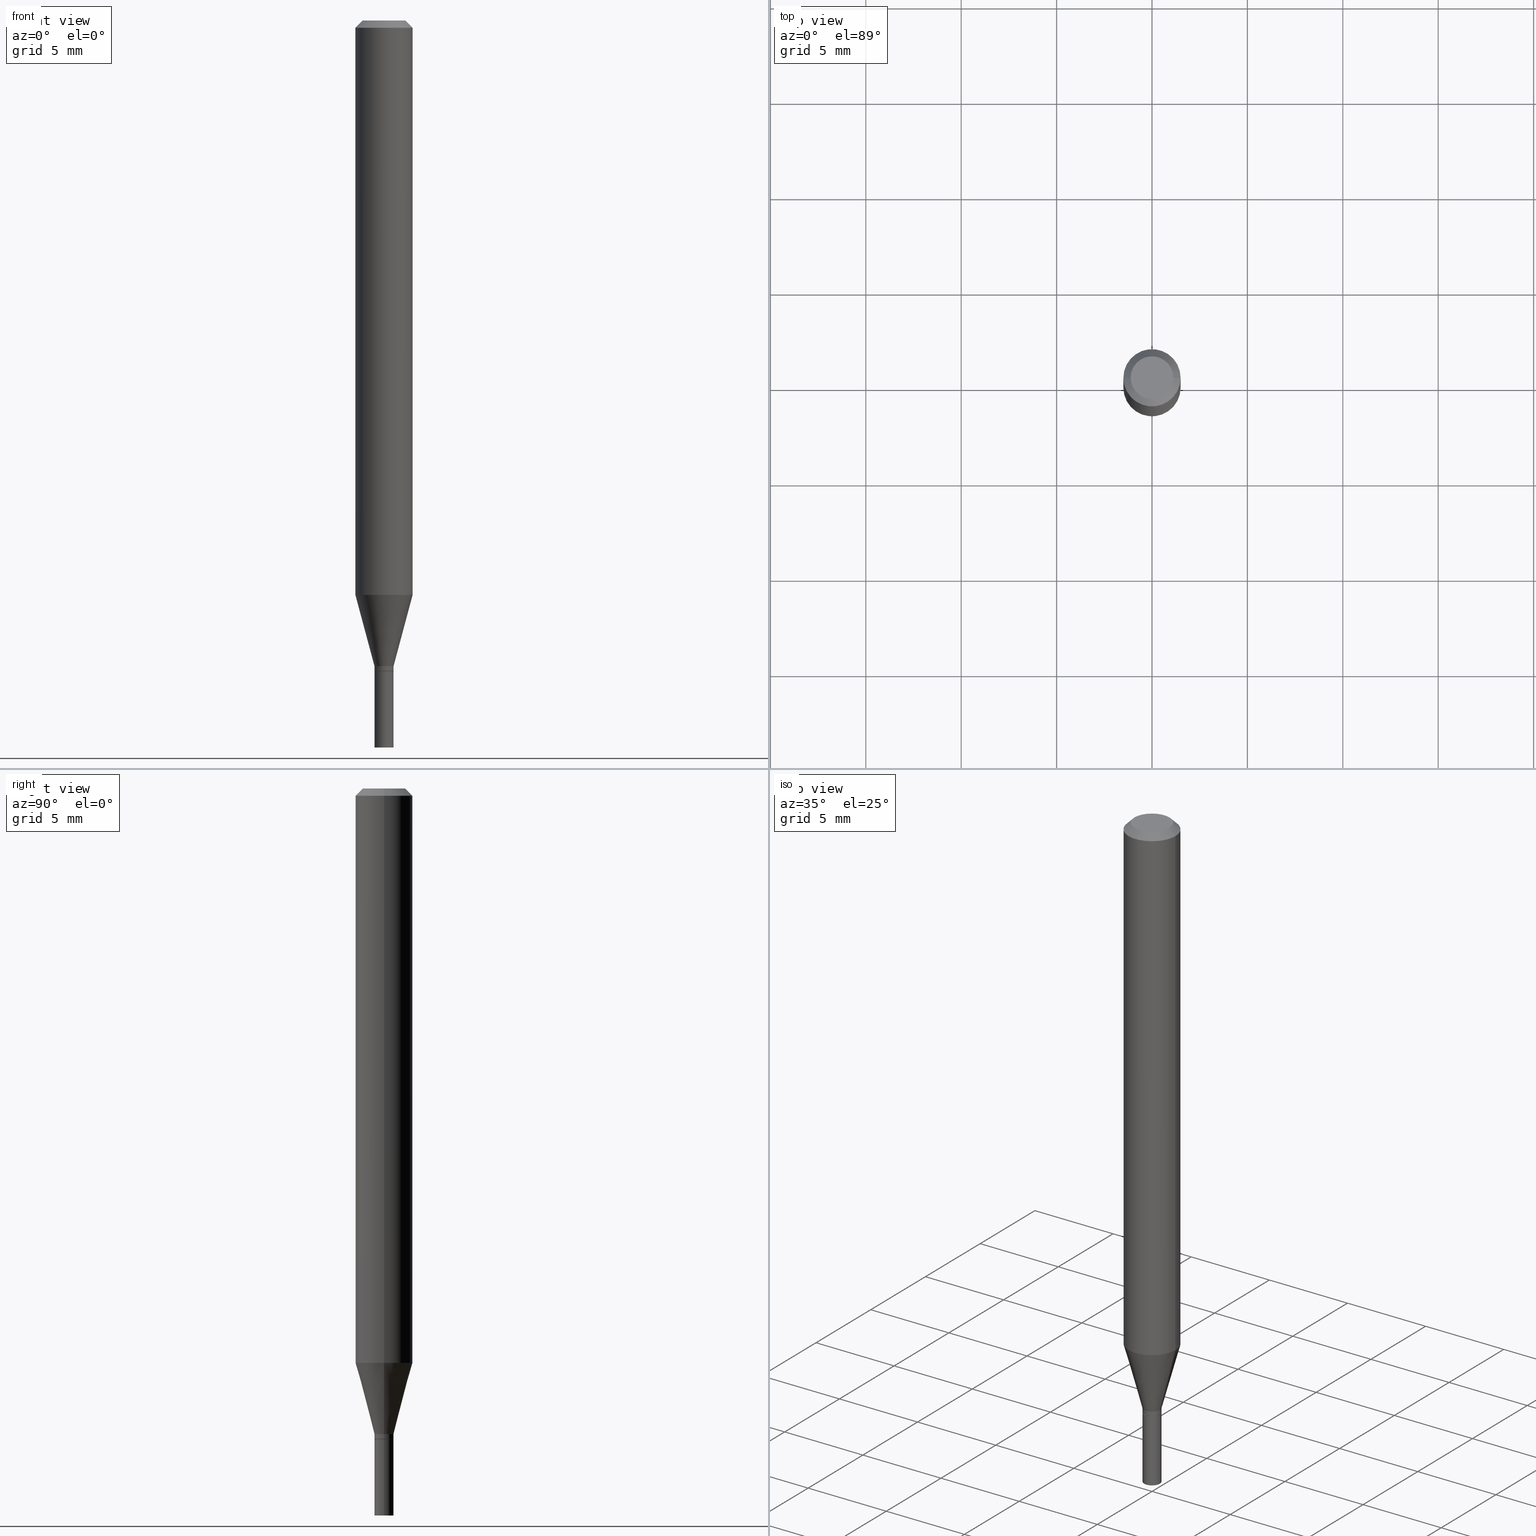
[diagram: canonical four-view strip — front | top / right | iso, engineering-drawing reading convention]
A machine part, canonical four-view strip (front | top / right | iso — engineering-drawing reading convention). The complete STEP part file that produces these views, byte-faithful:
ISO-10303-21;
HEADER;
FILE_DESCRIPTION (( 'STEP AP203' ),
    '1' );
FILE_NAME ('48671.STEP',
    '2024-03-12T19:41:00',
    ( '' ),
    ( '' ),
    'SwSTEP 2.0',
    'SolidWorks 2023',
    '' );
FILE_SCHEMA (( 'CONFIG_CONTROL_DESIGN' ));
ENDSEC;

DATA;
#1 = CARTESIAN_POINT ( 'NONE',  ( 0.05905000000000001914, -4.647161662000214077E-16, -0.01499999999999999944 ) ) ;
#2 = CARTESIAN_POINT ( 'NONE',  ( -0.05905000000000001914, 4.195754854663392958E-16, -2.904631170795522943E-30 ) ) ;
#3 = VERTEX_POINT ( 'NONE', #242 ) ;
#4 = CONICAL_SURFACE ( 'NONE', #400, 0.01919999999999999485, 0.7853981633974739252 ) ;
#5 = EDGE_CURVE ( 'NONE', #460, #3, #174, .T. ) ;
#6 = VECTOR ( 'NONE', #226, 39.37007874015748854 ) ;
#7 = FACE_OUTER_BOUND ( 'NONE', #415, .T. ) ;
#8 = DIRECTION ( 'NONE',  ( 1.000000000000000000, -6.982962677686266711E-15, 4.876176775795935793E-29 ) ) ;
#9 = CARTESIAN_POINT ( 'NONE',  ( -0.05905000000000001914, -3.718331978600737710E-15, -1.185143800722164409 ) ) ;
#10 = CIRCLE ( 'NONE', #138, 0.01969999999999999876 ) ;
#11 = DIRECTION ( 'NONE',  ( -1.000000000000000000, 6.982962677686266711E-15, 0.000000000000000000 ) ) ;
#12 = DIRECTION ( 'NONE',  ( -2.445468806185136597E-29, 3.491481338843145583E-15, 1.000000000000000000 ) ) ;
#13 = ORIENTED_EDGE ( 'NONE', *, *, #427, .F. ) ;
#14 = APPROVAL ( #388, 'UNSPECIFIED' ) ;
#15 = DIRECTION ( 'NONE',  ( -2.445468806185136597E-29, 3.491481338843145583E-15, 1.000000000000000000 ) ) ;
#16 = PRODUCT ( '48671', '48671', '', ( #462 ) ) ;
#17 = ORIENTED_EDGE ( 'NONE', *, *, #350, .F. ) ;
#18 = AXIS2_PLACEMENT_3D ( 'NONE', #143, #426, #29 ) ;
#19 = DIRECTION ( 'NONE',  ( -2.445468806185136597E-29, 3.491481338843145583E-15, 1.000000000000000000 ) ) ;
#20 = ORIENTED_EDGE ( 'NONE', *, *, #323, .T. ) ;
#21 = VERTEX_POINT ( 'NONE', #97 ) ;
#22 = DIRECTION ( 'NONE',  ( -2.445468806185136597E-29, 3.491481338843145583E-15, 1.000000000000000000 ) ) ;
#23 = EDGE_CURVE ( 'NONE', #50, #375, #205, .T. ) ;
#24 = ORIENTED_EDGE ( 'NONE', *, *, #275, .T. ) ;
#25 = CARTESIAN_POINT ( 'NONE',  ( 0.000000000000000000, 0.000000000000000000, 0.000000000000000000 ) ) ;
#26 = CARTESIAN_POINT ( 'NONE',  ( 0.000000000000000000, 0.000000000000000000, 0.000000000000000000 ) ) ;
#27 = CARTESIAN_POINT ( 'NONE',  ( -0.01969999999999991896, -4.545591037782763230E-15, -1.342000000000000304 ) ) ;
#28 = ADVANCED_FACE ( 'NONE', ( #322 ), #281, .T. ) ;
#29 = DIRECTION ( 'NONE',  ( 1.000000000000000000, -6.982962677686266711E-15, 0.000000000000000000 ) ) ;
#30 = PERSON_AND_ORGANIZATION_ROLE ( 'design_supplier' ) ;
#31 = FACE_OUTER_BOUND ( 'NONE', #269, .T. ) ;
#32 = AXIS2_PLACEMENT_3D ( 'NONE', #260, #12, #305 ) ;
#33 = PRODUCT_DEFINITION_FORMATION_WITH_SPECIFIED_SOURCE ( 'ANY', '', #16, .NOT_KNOWN. ) ;
#34 = EDGE_LOOP ( 'NONE', ( #128, #156 ) ) ;
#35 = ORIENTED_EDGE ( 'NONE', *, *, #403, .F. ) ;
#36 = DIRECTION ( 'NONE',  ( 1.000000000000000000, -6.982962677686278543E-15, 0.000000000000000000 ) ) ;
#37 = EDGE_CURVE ( 'NONE', #234, #50, #214, .T. ) ;
#38 = CARTESIAN_POINT ( 'NONE',  ( -0.04404999999999999888, 3.337856159934041534E-16, 3.533548453838689148E-16 ) ) ;
#39 = CIRCLE ( 'NONE', #58, 0.04404999999999999888 ) ;
#40 = DIRECTION ( 'NONE',  ( -2.445468806185136597E-29, 3.491481338843145583E-15, 1.000000000000000000 ) ) ;
#41 = DIRECTION ( 'NONE',  ( -2.445468806185136597E-29, 3.491481338843145583E-15, 1.000000000000000000 ) ) ;
#42 = FACE_OUTER_BOUND ( 'NONE', #442, .T. ) ;
#43 = AXIS2_PLACEMENT_3D ( 'NONE', #25, #312, #8 ) ;
#44 = DIRECTION ( 'NONE',  ( -2.438088387897960049E-29, 3.491481338843145188E-15, 1.000000000000000000 ) ) ;
#45 = LINE ( 'NONE', #119, #405 ) ;
#46 = ORIENTED_EDGE ( 'NONE', *, *, #256, .F. ) ;
#47 = LINE ( 'NONE', #345, #272 ) ;
#48 = ORIENTED_EDGE ( 'NONE', *, *, #196, .F. ) ;
#49 = CIRCLE ( 'NONE', #444, 0.01919999999999999485 ) ;
#50 = VERTEX_POINT ( 'NONE', #1 ) ;
#51 = EDGE_CURVE ( 'NONE', #21, #460, #274, .T. ) ;
#52 = DIRECTION ( 'NONE',  ( 1.000000000000000000, -6.982962677686266711E-15, 0.000000000000000000 ) ) ;
#53 = ORIENTED_EDGE ( 'NONE', *, *, #90, .F. ) ;
#54 = PERSON_AND_ORGANIZATION ( #410, #190 ) ;
#55 = DIRECTION ( 'NONE',  ( 1.000000000000000000, -6.982962677686265922E-15, 4.876176775795935793E-29 ) ) ;
#56 = PERSON_AND_ORGANIZATION ( #410, #190 ) ;
#57 = VECTOR ( 'NONE', #399, 39.37007874015748143 ) ;
#58 = AXIS2_PLACEMENT_3D ( 'NONE', #333, #22, #82 ) ;
#59 = DIRECTION ( 'NONE',  ( 1.000000000000000000, -6.982962677686258033E-15, 0.000000000000000000 ) ) ;
#60 = EDGE_CURVE ( 'NONE', #72, #460, #100, .T. ) ;
#61 = PERSON_AND_ORGANIZATION_ROLE ( 'creator' ) ;
#62 = FACE_OUTER_BOUND ( 'NONE', #141, .T. ) ;
#63 = APPROVAL_DATE_TIME ( #103, #147 ) ;
#64 = DIRECTION ( 'NONE',  ( 1.000000000000000000, -6.982962677686266711E-15, 0.000000000000000000 ) ) ;
#65 = DESIGN_CONTEXT ( 'detailed design', #191, 'design' ) ;
#66 = COORDINATED_UNIVERSAL_TIME_OFFSET ( 5, 0, .BEHIND. ) ;
#67 = AXIS2_PLACEMENT_3D ( 'NONE', #80, #438, #149 ) ;
#68 = FACE_OUTER_BOUND ( 'NONE', #368, .T. ) ;
#69 = VECTOR ( 'NONE', #246, 39.37007874015748143 ) ;
#70 = CC_DESIGN_PERSON_AND_ORGANIZATION_ASSIGNMENT ( #241, #30, ( #33 ) ) ;
#71 = ADVANCED_FACE ( 'NONE', ( #62 ), #4, .T. ) ;
#72 = VERTEX_POINT ( 'NONE', #27 ) ;
#73 = LINE ( 'NONE', #329, #300 ) ;
#74 = CC_DESIGN_PERSON_AND_ORGANIZATION_ASSIGNMENT ( #282, #215, ( #146 ) ) ;
#75 = DIRECTION ( 'NONE',  ( -2.445468806185136597E-29, 3.491481338843145583E-15, 1.000000000000000000 ) ) ;
#76 = DIRECTION ( 'NONE',  ( 2.438088387897960049E-29, -3.491481338843145188E-15, -1.000000000000000000 ) ) ;
#77 = ADVANCED_FACE ( 'NONE', ( #31 ), #217, .T. ) ;
#78 = CIRCLE ( 'NONE', #152, 0.01919999999999999485 ) ;
#79 = AXIS2_PLACEMENT_3D ( 'NONE', #299, #264, #382 ) ;
#80 = CARTESIAN_POINT ( 'NONE',  ( 1.375643647504522233E-16, 0.01969999999999531154, -1.342500000000000249 ) ) ;
#81 = DIRECTION ( 'NONE',  ( -2.445468806185136597E-29, 3.491481338843145583E-15, 1.000000000000000000 ) ) ;
#82 = DIRECTION ( 'NONE',  ( 1.000000000000000000, -6.982962677686265922E-15, 4.819687581474398999E-29 ) ) ;
#83 = ADVANCED_FACE ( 'NONE', ( #68 ), #363, .F. ) ;
#84 = DIRECTION ( 'NONE',  ( -2.445468806185136597E-29, 3.491481338843145583E-15, 1.000000000000000000 ) ) ;
#85 = ORIENTED_EDGE ( 'NONE', *, *, #275, .F. ) ;
#86 = CARTESIAN_POINT ( 'NONE',  ( 2.898232195509746702E-29, -4.137907464067076414E-15, -1.185143800722164409 ) ) ;
#87 = ORIENTED_EDGE ( 'NONE', *, *, #342, .T. ) ;
#88 = CYLINDRICAL_SURFACE ( 'NONE', #206, 0.01969999999999990856 ) ;
#89 = ORIENTED_EDGE ( 'NONE', *, *, #90, .T. ) ;
#90 = EDGE_CURVE ( 'NONE', #310, #72, #245, .T. ) ;
#91 =( CONVERSION_BASED_UNIT ( 'INCH', #413 ) LENGTH_UNIT ( ) NAMED_UNIT ( #302 ) );
#92 = ORIENTED_EDGE ( 'NONE', *, *, #271, .F. ) ;
#93 = SHAPE_DEFINITION_REPRESENTATION ( #298, #212 ) ;
#94 = ORIENTED_EDGE ( 'NONE', *, *, #366, .T. ) ;
#95 = PRODUCT_DEFINITION ( 'UNKNOWN', '', #33, #65 ) ;
#96 = APPROVAL_ROLE ( '' ) ;
#97 = CARTESIAN_POINT ( 'NONE',  ( 0.01919999999999999485, -4.821386580808499461E-15, -1.342500000000000249 ) ) ;
#98 = EDGE_LOOP ( 'NONE', ( #283, #381, #409, #346 ) ) ;
#99 = CALENDAR_DATE ( 2024, 12, 3 ) ;
#100 = CIRCLE ( 'NONE', #287, 0.01969999999999991896 ) ;
#101 = APPROVAL_PERSON_ORGANIZATION ( #465, #357, #428 ) ;
#102 = DIRECTION ( 'NONE',  ( -2.438088387897960049E-29, 3.491481338843145188E-15, 1.000000000000000000 ) ) ;
#103 = DATE_AND_TIME ( #417, #169 ) ;
#104 = CARTESIAN_POINT ( 'NONE',  ( 0.000000000000000000, 0.000000000000000000, 0.000000000000000000 ) ) ;
#105 = CALENDAR_DATE ( 2024, 12, 3 ) ;
#106 = DIRECTION ( 'NONE',  ( 1.000000000000000000, -6.982962677686266711E-15, 0.000000000000000000 ) ) ;
#107 = EDGE_CURVE ( 'NONE', #307, #3, #189, .T. ) ;
#108 = AXIS2_PLACEMENT_3D ( 'NONE', #354, #385, #106 ) ;
#109 = AXIS2_PLACEMENT_3D ( 'NONE', #447, #19, #452 ) ;
#110 = DIRECTION ( 'NONE',  ( -2.445468806185136877E-29, 3.491481338843145188E-15, 1.000000000000000000 ) ) ;
#111 = FACE_OUTER_BOUND ( 'NONE', #418, .T. ) ;
#112 = CC_DESIGN_PERSON_AND_ORGANIZATION_ASSIGNMENT ( #54, #213, ( #33 ) ) ;
#113 = CARTESIAN_POINT ( 'NONE',  ( 0.000000000000000000, 0.000000000000000000, 0.000000000000000000 ) ) ;
#114 = CARTESIAN_POINT ( 'NONE',  ( -0.01919999999999999485, -4.548240264956872853E-15, -1.342500000000000249 ) ) ;
#115 = AXIS2_PLACEMENT_3D ( 'NONE', #176, #391, #64 ) ;
#116 = CARTESIAN_POINT ( 'NONE',  ( 0.05905000000000001914, -4.550251410184451334E-15, -1.185143800722164409 ) ) ;
#117 = CARTESIAN_POINT ( 'NONE',  ( 3.668203209277705088E-31, -5.237222008264718399E-17, -0.01499999999999999944 ) ) ;
#118 = EDGE_CURVE ( 'NONE', #3, #307, #270, .T. ) ;
#119 = CARTESIAN_POINT ( 'NONE',  ( 0.01969999999999989468, -4.788217508089488526E-15, -1.331999999999999851 ) ) ;
#120 = EDGE_LOOP ( 'NONE', ( #338, #420, #159, #383 ) ) ;
#121 = AXIS2_PLACEMENT_3D ( 'NONE', #104, #317, #182 ) ;
#122 = AXIS2_PLACEMENT_3D ( 'NONE', #163, #84, #237 ) ;
#123 = CARTESIAN_POINT ( 'NONE',  ( 3.257364449838602072E-29, -4.650653143339069312E-15, -1.331999999999999851 ) ) ;
#124 = ORIENTED_EDGE ( 'NONE', *, *, #187, .F. ) ;
#125 = PLANE ( 'NONE',  #331 ) ;
#126 = MANIFOLD_SOLID_BREP ( 'Body-Move/Copy2[1]', #348 ) ;
#127 = VERTEX_POINT ( 'NONE', #430 ) ;
#128 = ORIENTED_EDGE ( 'NONE', *, *, #403, .T. ) ;
#129 = CLOSED_SHELL ( 'NONE', ( #132, #372, #251, #28, #361, #335, #77, #173, #239, #83, #71, #313 ) ) ;
#130 = COORDINATED_UNIVERSAL_TIME_OFFSET ( 5, 0, .BEHIND. ) ;
#131 = VERTEX_POINT ( 'NONE', #204 ) ;
#132 = ADVANCED_FACE ( 'NONE', ( #349 ), #171, .T. ) ;
#133 =( NAMED_UNIT ( * ) PLANE_ANGLE_UNIT ( ) SI_UNIT ( $, .RADIAN. ) );
#134 = VERTEX_POINT ( 'NONE', #218 ) ;
#135 = CARTESIAN_POINT ( 'NONE',  ( 0.01919999999999999485, -4.821386580808499461E-15, -1.342500000000000249 ) ) ;
#136 = EDGE_LOOP ( 'NONE', ( #240, #89, #238, #412 ) ) ;
#137 = PERSON_AND_ORGANIZATION ( #410, #190 ) ;
#138 = AXIS2_PLACEMENT_3D ( 'NONE', #185, #41, #154 ) ;
#139 = CARTESIAN_POINT ( 'NONE',  ( 0.01969999999999990856, -1.375643647504188200E-16, 9.606068248317949427E-31 ) ) ;
#140 = APPROVAL_STATUS ( 'not_yet_approved' ) ;
#141 = EDGE_LOOP ( 'NONE', ( #53, #24, #297, #448 ) ) ;
#142 = ADVANCED_FACE ( 'NONE', ( #7 ), #252, .F. ) ;
#143 = CARTESIAN_POINT ( 'NONE',  ( 3.257364449838602072E-29, -4.650653143339069312E-15, -1.331999999999999851 ) ) ;
#144 = AXIS2_PLACEMENT_3D ( 'NONE', #231, #202, #406 ) ;
#145 = CARTESIAN_POINT ( 'NONE',  ( 3.283041872303546419E-29, -4.687313697396923253E-15, -1.342500000000000249 ) ) ;
#146 = SECURITY_CLASSIFICATION ( '', '', #178 ) ;
#147 = APPROVAL ( #425, 'UNSPECIFIED' ) ;
#148 = DIRECTION ( 'NONE',  ( 2.445468806185136597E-29, -3.491481338843145583E-15, -1.000000000000000000 ) ) ;
#149 = DIRECTION ( 'NONE',  ( -1.000000000000000000, 6.982962677686265922E-15, -4.876176775795935793E-29 ) ) ;
#150 = ORIENTED_EDGE ( 'NONE', *, *, #107, .T. ) ;
#151 = CYLINDRICAL_SURFACE ( 'NONE', #179, 0.01969999999999999876 ) ;
#152 = AXIS2_PLACEMENT_3D ( 'NONE', #145, #370, #367 ) ;
#153 = CC_DESIGN_SECURITY_CLASSIFICATION ( #146, ( #33 ) ) ;
#154 = DIRECTION ( 'NONE',  ( 1.000000000000000000, -6.982962677686278543E-15, 0.000000000000000000 ) ) ;
#155 = DIRECTION ( 'NONE',  ( 1.000000000000000000, -6.982962677686265922E-15, 4.876176775795935793E-29 ) ) ;
#156 = ORIENTED_EDGE ( 'NONE', *, *, #350, .T. ) ;
#157 = VERTEX_POINT ( 'NONE', #440 ) ;
#158 = DIRECTION ( 'NONE',  ( -2.445468806185136597E-29, 3.491481338843145583E-15, 1.000000000000000000 ) ) ;
#159 = ORIENTED_EDGE ( 'NONE', *, *, #23, .F. ) ;
#160 = CIRCLE ( 'NONE', #464, 0.01969999999999999876 ) ;
#161 = AXIS2_PLACEMENT_3D ( 'NONE', #86, #376, #194 ) ;
#162 = EDGE_CURVE ( 'NONE', #460, #72, #318, .T. ) ;
#163 = CARTESIAN_POINT ( 'NONE',  ( 2.898232195509746702E-29, -4.137907464067076414E-15, -1.185143800722164409 ) ) ;
#164 = ORIENTED_EDGE ( 'NONE', *, *, #187, .T. ) ;
#165 = CARTESIAN_POINT ( 'NONE',  ( -0.05905000000000001914, -1.675564356608522648E-15, -0.01499999999999999944 ) ) ;
#166 = ORIENTED_EDGE ( 'NONE', *, *, #291, .T. ) ;
#167 = DIRECTION ( 'NONE',  ( -2.445468806185136877E-29, 3.491481338843145188E-15, 1.000000000000000000 ) ) ;
#168 = ORIENTED_EDGE ( 'NONE', *, *, #461, .T. ) ;
#169 = LOCAL_TIME ( 15, 41, 0.000000000000000000, #66 ) ;
#170 = DATE_AND_TIME ( #105, #387 ) ;
#171 = CYLINDRICAL_SURFACE ( 'NONE', #43, 0.01969999999999990856 ) ;
#172 = ORIENTED_EDGE ( 'NONE', *, *, #392, .T. ) ;
#173 = ADVANCED_FACE ( 'NONE', ( #365 ), #216, .T. ) ;
#174 = LINE ( 'NONE', #139, #451 ) ;
#175 = DATE_TIME_ROLE ( 'creation_date' ) ;
#176 = CARTESIAN_POINT ( 'NONE',  ( 3.257364449838602072E-29, -4.650653143339069312E-15, -1.331999999999999851 ) ) ;
#177 = EDGE_CURVE ( 'NONE', #21, #310, #78, .T. ) ;
#178 = SECURITY_CLASSIFICATION_LEVEL ( 'unclassified' ) ;
#179 = AXIS2_PLACEMENT_3D ( 'NONE', #113, #40, #328 ) ;
#180 = CARTESIAN_POINT ( 'NONE',  ( -0.01919999999999999485, -4.550889492130984054E-15, -1.342500000000000249 ) ) ;
#181 = COORDINATED_UNIVERSAL_TIME_OFFSET ( 5, 0, .BEHIND. ) ;
#182 = DIRECTION ( 'NONE',  ( 1.000000000000000000, -6.982962677686266711E-15, 4.876176775795935793E-29 ) ) ;
#183 = DIRECTION ( 'NONE',  ( 1.000000000000000000, -6.982962677686258033E-15, 0.000000000000000000 ) ) ;
#184 = DIRECTION ( 'NONE',  ( -1.000000000000000000, 6.982962677686265922E-15, -4.876176775795935793E-29 ) ) ;
#185 = CARTESIAN_POINT ( 'NONE',  ( 3.668203209277704895E-29, -5.237222008264718177E-15, -1.500000000000000222 ) ) ;
#186 = DIRECTION ( 'NONE',  ( -1.000000000000000000, 6.982962677686266711E-15, 0.000000000000000000 ) ) ;
#187 = EDGE_CURVE ( 'NONE', #72, #307, #364, .T. ) ;
#188 = DIRECTION ( 'NONE',  ( -2.445468806185136597E-29, 3.491481338843145583E-15, 1.000000000000000000 ) ) ;
#189 = CIRCLE ( 'NONE', #18, 0.01969999999999989468 ) ;
#190 = ORGANIZATION ( 'UNSPECIFIED', 'UNSPECIFIED', '' ) ;
#191 = APPLICATION_CONTEXT ( 'configuration controlled 3d designs of mechanical parts and assemblies' ) ;
#192 = FACE_OUTER_BOUND ( 'NONE', #377, .T. ) ;
#193 = ORIENTED_EDGE ( 'NONE', *, *, #342, .F. ) ;
#194 = DIRECTION ( 'NONE',  ( 1.000000000000000000, -6.982962677686270655E-15, 0.000000000000000000 ) ) ;
#195 = ORIENTED_EDGE ( 'NONE', *, *, #37, .T. ) ;
#196 = EDGE_CURVE ( 'NONE', #127, #314, #160, .T. ) ;
#197 = DIRECTION ( 'NONE',  ( -2.445468806185136597E-29, 3.491481338843145583E-15, 1.000000000000000000 ) ) ;
#198 = ORIENTED_EDGE ( 'NONE', *, *, #118, .F. ) ;
#199 = AXIS2_PLACEMENT_3D ( 'NONE', #278, #102, #55 ) ;
#200 = LOCAL_TIME ( 15, 41, 0.000000000000000000, #181 ) ;
#201 = ORIENTED_EDGE ( 'NONE', *, *, #162, .T. ) ;
#202 = DIRECTION ( 'NONE',  ( -2.445468806185136597E-29, 3.491481338843145583E-15, 1.000000000000000000 ) ) ;
#203 = EDGE_LOOP ( 'NONE', ( #384, #35, #166, #172 ) ) ;
#204 = CARTESIAN_POINT ( 'NONE',  ( 0.01969999999999999876, -5.374786373015138180E-15, -1.500000000000000222 ) ) ;
#205 = CIRCLE ( 'NONE', #108, 0.05905000000000001914 ) ;
#206 = AXIS2_PLACEMENT_3D ( 'NONE', #404, #197, #268 ) ;
#207 = LOCAL_TIME ( 15, 41, 0.000000000000000000, #210 ) ;
#208 = DIRECTION ( 'NONE',  ( 0.000000000000000000, 0.000000000000000000, 1.000000000000000000 ) ) ;
#209 = DIRECTION ( 'NONE',  ( -2.445468806185136597E-29, 3.491481338843145583E-15, 1.000000000000000000 ) ) ;
#210 = COORDINATED_UNIVERSAL_TIME_OFFSET ( 5, 0, .BEHIND. ) ;
#211 = ORIENTED_EDGE ( 'NONE', *, *, #5, .T. ) ;
#212 = ADVANCED_BREP_SHAPE_REPRESENTATION ( '48671', ( #126, #284, #341 ), #424 ) ;
#213 = PERSON_AND_ORGANIZATION_ROLE ( 'creator' ) ;
#214 = LINE ( 'NONE', #320, #261 ) ;
#215 = PERSON_AND_ORGANIZATION_ROLE ( 'classification_officer' ) ;
#216 = CONICAL_SURFACE ( 'NONE', #262, 0.05905000000000001914, 0.7853981633974372878 ) ;
#217 = CYLINDRICAL_SURFACE ( 'NONE', #371, 0.05905000000000001914 ) ;
#218 = CARTESIAN_POINT ( 'NONE',  ( 0.04404999999999999888, -3.798447818264455642E-16, 3.533548453838735986E-16 ) ) ;
#219 = CYLINDRICAL_SURFACE ( 'NONE', #279, 0.01969999999999999876 ) ;
#220 = AXIS2_PLACEMENT_3D ( 'NONE', #258, #158, #336 ) ;
#221 = CARTESIAN_POINT ( 'NONE',  ( 3.281819137900453618E-29, -4.685567956727501750E-15, -1.342000000000000304 ) ) ;
#222 = DIRECTION ( 'NONE',  ( -0.7071067811865396902, 2.468850131082174625E-15, -0.7071067811865553443 ) ) ;
#223 = ADVANCED_FACE ( 'NONE', ( #397 ), #219, .T. ) ;
#224 = LINE ( 'NONE', #2, #57 ) ;
#225 = ORIENTED_EDGE ( 'NONE', *, *, #392, .F. ) ;
#226 = DIRECTION ( 'NONE',  ( -0.2588190451025211836, 5.211531920934547886E-15, 0.9659258262890679791 ) ) ;
#227 = CIRCLE ( 'NONE', #122, 0.05905000000000001914 ) ;
#228 = DIRECTION ( 'NONE',  ( 1.000000000000000000, -6.982962677686266711E-15, 0.000000000000000000 ) ) ;
#229 = CC_DESIGN_DATE_AND_TIME_ASSIGNMENT ( #358, #175, ( #95 ) ) ;
#230 = VERTEX_POINT ( 'NONE', #38 ) ;
#231 = CARTESIAN_POINT ( 'NONE',  ( 3.283041872303546419E-29, -4.687313697396923253E-15, -1.342500000000000249 ) ) ;
#232 = EDGE_LOOP ( 'NONE', ( #46, #193 ) ) ;
#233 = FACE_OUTER_BOUND ( 'NONE', #232, .T. ) ;
#234 = VERTEX_POINT ( 'NONE', #116 ) ;
#235 = CIRCLE ( 'NONE', #32, 0.04404999999999999888 ) ;
#236 = CIRCLE ( 'NONE', #161, 0.05905000000000001914 ) ;
#237 = DIRECTION ( 'NONE',  ( 1.000000000000000000, -6.982962677686270655E-15, 0.000000000000000000 ) ) ;
#238 = ORIENTED_EDGE ( 'NONE', *, *, #162, .F. ) ;
#239 = ADVANCED_FACE ( 'NONE', ( #255 ), #324, .F. ) ;
#240 = ORIENTED_EDGE ( 'NONE', *, *, #177, .T. ) ;
#241 = PERSON_AND_ORGANIZATION ( #410, #190 ) ;
#242 = CARTESIAN_POINT ( 'NONE',  ( 0.01969999999999989468, -4.788217508089488526E-15, -1.331999999999999851 ) ) ;
#243 = AXIS2_PLACEMENT_3D ( 'NONE', #309, #303, #228 ) ;
#244 =( NAMED_UNIT ( * ) SI_UNIT ( $, .STERADIAN. ) SOLID_ANGLE_UNIT ( ) );
#245 = LINE ( 'NONE', #180, #248 ) ;
#246 = DIRECTION ( 'NONE',  ( 0.7071067811865656694, -2.468850131082446387E-15, 0.7071067811865294761 ) ) ;
#247 = CARTESIAN_POINT ( 'NONE',  ( 3.283041872303546419E-29, -4.687313697396923253E-15, -1.342500000000000249 ) ) ;
#248 = VECTOR ( 'NONE', #356, 39.37007874015748143 ) ;
#249 = CC_DESIGN_APPROVAL ( #357, ( #146 ) ) ;
#250 = DIRECTION ( 'NONE',  ( -2.445468806185136597E-29, 3.491481338843145583E-15, 1.000000000000000000 ) ) ;
#251 = ADVANCED_FACE ( 'NONE', ( #42 ), #254, .T. ) ;
#252 = PLANE ( 'NONE',  #67 ) ;
#253 = DIRECTION ( 'NONE',  ( 1.000000000000000000, -6.982962677686253300E-15, 0.000000000000000000 ) ) ;
#254 = CONICAL_SURFACE ( 'NONE', #380, 0.05905000000000001914, 0.7853981633974372878 ) ;
#255 = FACE_OUTER_BOUND ( 'NONE', #34, .T. ) ;
#256 = EDGE_CURVE ( 'NONE', #131, #157, #10, .T. ) ;
#257 = CARTESIAN_POINT ( 'NONE',  ( 0.000000000000000000, 0.000000000000000000, 0.000000000000000000 ) ) ;
#258 = CARTESIAN_POINT ( 'NONE',  ( 3.668203209277704895E-29, -5.237222008264718177E-15, -1.500000000000000222 ) ) ;
#259 = CC_DESIGN_PERSON_AND_ORGANIZATION_ASSIGNMENT ( #137, #353, ( #16 ) ) ;
#260 = CARTESIAN_POINT ( 'NONE',  ( -8.641182519006289553E-45, 1.233731848647591164E-30, 3.533548453838711334E-16 ) ) ;
#261 = VECTOR ( 'NONE', #110, 39.37007874015748143 ) ;
#262 = AXIS2_PLACEMENT_3D ( 'NONE', #117, #148, #186 ) ;
#263 = EDGE_LOOP ( 'NONE', ( #201, #164, #198, #308 ) ) ;
#264 = DIRECTION ( 'NONE',  ( -2.445468806185136597E-29, 3.491481338843145583E-15, 1.000000000000000000 ) ) ;
#265 = ORIENTED_EDGE ( 'NONE', *, *, #366, .F. ) ;
#266 = LINE ( 'NONE', #408, #6 ) ;
#267 = ORIENTED_EDGE ( 'NONE', *, *, #271, .T. ) ;
#268 = DIRECTION ( 'NONE',  ( 1.000000000000000000, -6.982962677686266711E-15, 4.876176775795935793E-29 ) ) ;
#269 = EDGE_LOOP ( 'NONE', ( #285, #168, #195, #225 ) ) ;
#270 = CIRCLE ( 'NONE', #115, 0.01969999999999989468 ) ;
#271 = EDGE_CURVE ( 'NONE', #131, #127, #290, .T. ) ;
#272 = VECTOR ( 'NONE', #296, 39.37007874015748143 ) ;
#273 = ORIENTED_EDGE ( 'NONE', *, *, #107, .F. ) ;
#274 = LINE ( 'NONE', #135, #69 ) ;
#275 = EDGE_CURVE ( 'NONE', #310, #21, #49, .T. ) ;
#276 = APPROVAL_ROLE ( '' ) ;
#277 = APPLICATION_CONTEXT ( 'configuration controlled 3d designs of mechanical parts and assemblies' ) ;
#278 = CARTESIAN_POINT ( 'NONE',  ( 3.283041872303546419E-29, -4.687313697396923253E-15, -1.342500000000000249 ) ) ;
#279 = AXIS2_PLACEMENT_3D ( 'NONE', #257, #402, #292 ) ;
#280 = APPROVAL_DATE_TIME ( #419, #14 ) ;
#281 = CYLINDRICAL_SURFACE ( 'NONE', #121, 0.05905000000000001914 ) ;
#282 = PERSON_AND_ORGANIZATION ( #410, #190 ) ;
#283 = ORIENTED_EDGE ( 'NONE', *, *, #118, .T. ) ;
#284 = MANIFOLD_SOLID_BREP ( 'Body-Move/Copy2[2]', #129 ) ;
#285 = ORIENTED_EDGE ( 'NONE', *, *, #286, .F. ) ;
#286 = EDGE_CURVE ( 'NONE', #301, #375, #224, .T. ) ;
#287 = AXIS2_PLACEMENT_3D ( 'NONE', #389, #250, #59 ) ;
#288 = DIRECTION ( 'NONE',  ( -2.445468806185136877E-29, 3.491481338843145188E-15, 1.000000000000000000 ) ) ;
#289 = CC_DESIGN_DATE_AND_TIME_ASSIGNMENT ( #362, #319, ( #146 ) ) ;
#290 = LINE ( 'NONE', #395, #453 ) ;
#291 = EDGE_CURVE ( 'NONE', #230, #375, #73, .T. ) ;
#292 = DIRECTION ( 'NONE',  ( 1.000000000000000000, -6.982962677686265922E-15, 4.876176775795935232E-29 ) ) ;
#293 = AXIS2_PLACEMENT_3D ( 'NONE', #221, #188, #183 ) ;
#294 = FACE_OUTER_BOUND ( 'NONE', #304, .T. ) ;
#295 = CARTESIAN_POINT ( 'NONE',  ( 3.283041872303546419E-29, -4.687313697396923253E-15, -1.342500000000000249 ) ) ;
#296 = DIRECTION ( 'NONE',  ( 0.7071067811865396902, -7.319954787623229224E-15, -0.7071067811865553443 ) ) ;
#297 = ORIENTED_EDGE ( 'NONE', *, *, #51, .T. ) ;
#298 = PRODUCT_DEFINITION_SHAPE ( 'NONE', 'NONE',  #95 ) ;
#299 = CARTESIAN_POINT ( 'NONE',  ( 3.283041872303546419E-29, -4.687313697396923253E-15, -1.342500000000000249 ) ) ;
#300 = VECTOR ( 'NONE', #222, 39.37007874015748143 ) ;
#301 = VERTEX_POINT ( 'NONE', #9 ) ;
#302 = DIMENSIONAL_EXPONENTS ( 1.000000000000000000, 0.000000000000000000, 0.000000000000000000, 0.000000000000000000, 0.000000000000000000, 0.000000000000000000, 0.000000000000000000 ) ;
#303 = DIRECTION ( 'NONE',  ( -2.445468806185136597E-29, 3.491481338843145583E-15, 1.000000000000000000 ) ) ;
#304 = EDGE_LOOP ( 'NONE', ( #124, #340, #211, #273 ) ) ;
#305 = DIRECTION ( 'NONE',  ( 1.000000000000000000, -6.982962677686265922E-15, 4.819687581474398999E-29 ) ) ;
#306 = ADVANCED_FACE ( 'NONE', ( #111 ), #151, .T. ) ;
#307 = VERTEX_POINT ( 'NONE', #435 ) ;
#308 = ORIENTED_EDGE ( 'NONE', *, *, #5, .F. ) ;
#309 = CARTESIAN_POINT ( 'NONE',  ( 3.668203209277705088E-31, -5.237222008264718399E-17, -0.01499999999999999944 ) ) ;
#310 = VERTEX_POINT ( 'NONE', #114 ) ;
#311 = AXIS2_PLACEMENT_3D ( 'NONE', #369, #76, #184 ) ;
#312 = DIRECTION ( 'NONE',  ( -2.445468806185136597E-29, 3.491481338843145583E-15, 1.000000000000000000 ) ) ;
#313 = ADVANCED_FACE ( 'NONE', ( #294 ), #88, .T. ) ;
#314 = VERTEX_POINT ( 'NONE', #445 ) ;
#315 = ORIENTED_EDGE ( 'NONE', *, *, #256, .T. ) ;
#316 = PERSON_AND_ORGANIZATION ( #410, #190 ) ;
#317 = DIRECTION ( 'NONE',  ( -2.445468806185136597E-29, 3.491481338843145583E-15, 1.000000000000000000 ) ) ;
#318 = CIRCLE ( 'NONE', #293, 0.01969999999999991896 ) ;
#319 = DATE_TIME_ROLE ( 'classification_date' ) ;
#320 = CARTESIAN_POINT ( 'NONE',  ( 0.05905000000000001914, -4.123439461173741806E-16, 2.879382386107500921E-30 ) ) ;
#321 = CALENDAR_DATE ( 2024, 12, 3 ) ;
#322 = FACE_OUTER_BOUND ( 'NONE', #120, .T. ) ;
#323 = EDGE_CURVE ( 'NONE', #134, #50, #47, .T. ) ;
#324 = PLANE ( 'NONE',  #311 ) ;
#325 = AXIS2_PLACEMENT_3D ( 'NONE', #123, #15, #52 ) ;
#326 = CC_DESIGN_APPROVAL ( #14, ( #95 ) ) ;
#327 = DIRECTION ( 'NONE',  ( 2.445468806185136597E-29, -3.491481338843145583E-15, -1.000000000000000000 ) ) ;
#328 = DIRECTION ( 'NONE',  ( 1.000000000000000000, -6.982962677686265922E-15, 4.876176775795935232E-29 ) ) ;
#329 = CARTESIAN_POINT ( 'NONE',  ( -0.05905000000000001914, 3.599717260347269535E-16, -0.01499999999999999944 ) ) ;
#330 = VECTOR ( 'NONE', #288, 39.37007874015748143 ) ;
#331 = AXIS2_PLACEMENT_3D ( 'NONE', #374, #44, #155 ) ;
#332 = CARTESIAN_POINT ( 'NONE',  ( 3.668203209277705088E-31, -5.237222008264718399E-17, -0.01499999999999999944 ) ) ;
#333 = CARTESIAN_POINT ( 'NONE',  ( -8.641182519006289553E-45, 1.233731848647591164E-30, 3.533548453838711334E-16 ) ) ;
#334 = ORIENTED_EDGE ( 'NONE', *, *, #443, .T. ) ;
#335 = ADVANCED_FACE ( 'NONE', ( #192 ), #436, .T. ) ;
#336 = DIRECTION ( 'NONE',  ( 1.000000000000000000, -6.982962677686278543E-15, 0.000000000000000000 ) ) ;
#337 = PRODUCT_RELATED_PRODUCT_CATEGORY ( 'detail', '', ( #16 ) ) ;
#338 = ORIENTED_EDGE ( 'NONE', *, *, #378, .T. ) ;
#339 = FACE_OUTER_BOUND ( 'NONE', #98, .T. ) ;
#340 = ORIENTED_EDGE ( 'NONE', *, *, #60, .T. ) ;
#341 = AXIS2_PLACEMENT_3D ( 'NONE', #26, #208, #458 ) ;
#342 = EDGE_CURVE ( 'NONE', #157, #131, #423, .T. ) ;
#343 =( LENGTH_UNIT ( ) NAMED_UNIT ( * ) SI_UNIT ( $, .METRE. ) );
#344 = ORIENTED_EDGE ( 'NONE', *, *, #291, .F. ) ;
#345 = CARTESIAN_POINT ( 'NONE',  ( 0.05905000000000001914, -4.574846268510562433E-16, -0.01499999999999999944 ) ) ;
#346 = ORIENTED_EDGE ( 'NONE', *, *, #443, .F. ) ;
#347 = APPLICATION_PROTOCOL_DEFINITION ( 'international standard', 'config_control_design', 1994, #191 ) ;
#348 = CLOSED_SHELL ( 'NONE', ( #306, #439, #223, #142 ) ) ;
#349 = FACE_OUTER_BOUND ( 'NONE', #263, .T. ) ;
#350 = EDGE_CURVE ( 'NONE', #134, #230, #235, .T. ) ;
#351 = CONICAL_SURFACE ( 'NONE', #144, 0.01919999999999999485, 0.7853981633974739252 ) ;
#352 = APPROVAL_PERSON_ORGANIZATION ( #390, #14, #276 ) ;
#353 = PERSON_AND_ORGANIZATION_ROLE ( 'design_owner' ) ;
#354 = CARTESIAN_POINT ( 'NONE',  ( 3.668203209277705088E-31, -5.237222008264718399E-17, -0.01499999999999999944 ) ) ;
#355 = CALENDAR_DATE ( 2024, 12, 3 ) ;
#356 = DIRECTION ( 'NONE',  ( -0.7071067811865656694, 7.493145998870420424E-15, 0.7071067811865294761 ) ) ;
#357 = APPROVAL ( #140, 'UNSPECIFIED' ) ;
#358 = DATE_AND_TIME ( #355, #207 ) ;
#359 = DIRECTION ( 'NONE',  ( 1.000000000000000000, -6.982962677686253300E-15, 0.000000000000000000 ) ) ;
#360 = VECTOR ( 'NONE', #167, 39.37007874015748143 ) ;
#361 = ADVANCED_FACE ( 'NONE', ( #339 ), #414, .T. ) ;
#362 = DATE_AND_TIME ( #321, #200 ) ;
#363 = PLANE ( 'NONE',  #199 ) ;
#364 = LINE ( 'NONE', #433, #330 ) ;
#365 = FACE_OUTER_BOUND ( 'NONE', #203, .T. ) ;
#366 = EDGE_CURVE ( 'NONE', #157, #314, #441, .T. ) ;
#367 = DIRECTION ( 'NONE',  ( 1.000000000000000000, -6.982962677686253300E-15, 0.000000000000000000 ) ) ;
#368 = EDGE_LOOP ( 'NONE', ( #466, #85 ) ) ;
#369 = CARTESIAN_POINT ( 'NONE',  ( 3.075995059520799729E-16, 0.04404999999999999888, 2.287766971589501637E-17 ) ) ;
#370 = DIRECTION ( 'NONE',  ( -2.445468806185136597E-29, 3.491481338843145583E-15, 1.000000000000000000 ) ) ;
#371 = AXIS2_PLACEMENT_3D ( 'NONE', #459, #394, #463 ) ;
#372 = ADVANCED_FACE ( 'NONE', ( #373 ), #351, .T. ) ;
#373 = FACE_OUTER_BOUND ( 'NONE', #136, .T. ) ;
#374 = CARTESIAN_POINT ( 'NONE',  ( 3.576687321579069994E-29, -5.368277968210015545E-15, -1.500000000000000222 ) ) ;
#375 = VERTEX_POINT ( 'NONE', #165 ) ;
#376 = DIRECTION ( 'NONE',  ( -2.445468806185136597E-29, 3.491481338843145583E-15, 1.000000000000000000 ) ) ;
#377 = EDGE_LOOP ( 'NONE', ( #457, #150, #334, #422 ) ) ;
#378 = EDGE_CURVE ( 'NONE', #234, #301, #227, .T. ) ;
#379 = CARTESIAN_POINT ( 'NONE',  ( 0.01969999999999991896, -4.823132321477920964E-15, -1.342000000000000304 ) ) ;
#380 = AXIS2_PLACEMENT_3D ( 'NONE', #332, #327, #11 ) ;
#381 = ORIENTED_EDGE ( 'NONE', *, *, #432, .T. ) ;
#382 = DIRECTION ( 'NONE',  ( 1.000000000000000000, -6.982962677686278543E-15, 0.000000000000000000 ) ) ;
#383 = ORIENTED_EDGE ( 'NONE', *, *, #37, .F. ) ;
#384 = ORIENTED_EDGE ( 'NONE', *, *, #323, .F. ) ;
#385 = DIRECTION ( 'NONE',  ( -2.445468806185136597E-29, 3.491481338843145583E-15, 1.000000000000000000 ) ) ;
#386 = CIRCLE ( 'NONE', #243, 0.05905000000000001914 ) ;
#387 = LOCAL_TIME ( 15, 41, 0.000000000000000000, #130 ) ;
#388 = APPROVAL_STATUS ( 'not_yet_approved' ) ;
#389 = CARTESIAN_POINT ( 'NONE',  ( 3.281819137900453618E-29, -4.685567956727501750E-15, -1.342000000000000304 ) ) ;
#390 = PERSON_AND_ORGANIZATION ( #410, #190 ) ;
#391 = DIRECTION ( 'NONE',  ( -2.445468806185136597E-29, 3.491481338843145583E-15, 1.000000000000000000 ) ) ;
#392 = EDGE_CURVE ( 'NONE', #375, #50, #386, .T. ) ;
#393 = APPROVAL_DATE_TIME ( #170, #357 ) ;
#394 = DIRECTION ( 'NONE',  ( -2.445468806185136597E-29, 3.491481338843145583E-15, 1.000000000000000000 ) ) ;
#395 = CARTESIAN_POINT ( 'NONE',  ( 0.01969999999999999876, -1.375643647504194363E-16, 9.606068248317991466E-31 ) ) ;
#396 = CC_DESIGN_PERSON_AND_ORGANIZATION_ASSIGNMENT ( #56, #61, ( #95 ) ) ;
#397 = FACE_OUTER_BOUND ( 'NONE', #446, .T. ) ;
#398 = UNCERTAINTY_MEASURE_WITH_UNIT (LENGTH_MEASURE( 1.000000000000000082E-05 ), #91, 'distance_accuracy_value', 'NONE');
#399 = DIRECTION ( 'NONE',  ( -2.445468806185136877E-29, 3.491481338843145188E-15, 1.000000000000000000 ) ) ;
#400 = AXIS2_PLACEMENT_3D ( 'NONE', #247, #209, #359 ) ;
#401 = CARTESIAN_POINT ( 'NONE',  ( 3.283041872303546419E-29, -4.687313697396923253E-15, -1.342500000000000249 ) ) ;
#402 = DIRECTION ( 'NONE',  ( -2.445468806185136597E-29, 3.491481338843145583E-15, 1.000000000000000000 ) ) ;
#403 = EDGE_CURVE ( 'NONE', #230, #134, #39, .T. ) ;
#404 = CARTESIAN_POINT ( 'NONE',  ( 0.000000000000000000, 0.000000000000000000, 0.000000000000000000 ) ) ;
#405 = VECTOR ( 'NONE', #411, 39.37007874015748854 ) ;
#406 = DIRECTION ( 'NONE',  ( 1.000000000000000000, -6.982962677686253300E-15, 0.000000000000000000 ) ) ;
#407 = ORIENTED_EDGE ( 'NONE', *, *, #196, .T. ) ;
#408 = CARTESIAN_POINT ( 'NONE',  ( -0.01969999999999989468, -4.510676224394330003E-15, -1.331999999999999851 ) ) ;
#409 = ORIENTED_EDGE ( 'NONE', *, *, #378, .F. ) ;
#410 = PERSON ( 'UNSPECIFIED', 'UNSPECIFIED', 'UNSPECIFIED', ('UNSPECIFIED'), ('UNSPECIFIED'), ('UNSPECIFIED') ) ;
#411 = DIRECTION ( 'NONE',  ( 0.2588190451025211836, 1.565188264969622559E-15, 0.9659258262890679791 ) ) ;
#412 = ORIENTED_EDGE ( 'NONE', *, *, #51, .F. ) ;
#413 = LENGTH_MEASURE_WITH_UNIT ( LENGTH_MEASURE( 0.02539999999999999897 ), #343 );
#414 = CONICAL_SURFACE ( 'NONE', #109, 0.01969999999999989468, 0.2617993877991499074 ) ;
#415 = EDGE_LOOP ( 'NONE', ( #407, #450 ) ) ;
#416 = LOCAL_TIME ( 15, 41, 0.000000000000000000, #421 ) ;
#417 = CALENDAR_DATE ( 2024, 12, 3 ) ;
#418 = EDGE_LOOP ( 'NONE', ( #315, #94, #48, #92 ) ) ;
#419 = DATE_AND_TIME ( #99, #416 ) ;
#420 = ORIENTED_EDGE ( 'NONE', *, *, #286, .T. ) ;
#421 = COORDINATED_UNIVERSAL_TIME_OFFSET ( 5, 0, .BEHIND. ) ;
#422 = ORIENTED_EDGE ( 'NONE', *, *, #461, .F. ) ;
#423 = CIRCLE ( 'NONE', #220, 0.01969999999999999876 ) ;
#424 =( GEOMETRIC_REPRESENTATION_CONTEXT ( 3 ) GLOBAL_UNCERTAINTY_ASSIGNED_CONTEXT ( ( #398 ) ) GLOBAL_UNIT_ASSIGNED_CONTEXT ( ( #91, #133, #244 ) ) REPRESENTATION_CONTEXT ( 'NONE', 'WORKASPACE' ) );
#425 = APPROVAL_STATUS ( 'not_yet_approved' ) ;
#426 = DIRECTION ( 'NONE',  ( -2.445468806185136597E-29, 3.491481338843145583E-15, 1.000000000000000000 ) ) ;
#427 = EDGE_CURVE ( 'NONE', #314, #127, #431, .T. ) ;
#428 = APPROVAL_ROLE ( '' ) ;
#429 = DIRECTION ( 'NONE',  ( -2.445468806185136877E-29, 3.491481338843145188E-15, 1.000000000000000000 ) ) ;
#430 = CARTESIAN_POINT ( 'NONE',  ( 0.01969999999999999876, -4.824878062147343257E-15, -1.342500000000000249 ) ) ;
#431 = CIRCLE ( 'NONE', #79, 0.01969999999999999876 ) ;
#432 = EDGE_CURVE ( 'NONE', #307, #301, #266, .T. ) ;
#433 = CARTESIAN_POINT ( 'NONE',  ( -0.01969999999999990856, 1.399769189447390869E-16, -9.690302127802118711E-31 ) ) ;
#434 = DIRECTION ( 'NONE',  ( -2.445468806185136877E-29, 3.491481338843145188E-15, 1.000000000000000000 ) ) ;
#435 = CARTESIAN_POINT ( 'NONE',  ( -0.01969999999999989468, -4.114504101497534251E-15, -1.331999999999999851 ) ) ;
#436 = CONICAL_SURFACE ( 'NONE', #325, 0.01969999999999989468, 0.2617993877991499074 ) ;
#437 = APPROVAL_PERSON_ORGANIZATION ( #316, #147, #96 ) ;
#438 = DIRECTION ( 'NONE',  ( 2.438088387897960049E-29, -3.491481338843145188E-15, -1.000000000000000000 ) ) ;
#439 = ADVANCED_FACE ( 'NONE', ( #233 ), #125, .F. ) ;
#440 = CARTESIAN_POINT ( 'NONE',  ( -0.01969999999999999876, -4.822290933886080617E-15, -1.500000000000000222 ) ) ;
#441 = LINE ( 'NONE', #449, #360 ) ;
#442 = EDGE_LOOP ( 'NONE', ( #17, #20, #455, #344 ) ) ;
#443 = EDGE_CURVE ( 'NONE', #3, #234, #45, .T. ) ;
#444 = AXIS2_PLACEMENT_3D ( 'NONE', #401, #81, #253 ) ;
#445 = CARTESIAN_POINT ( 'NONE',  ( -0.01969999999999999876, -4.822290933886080617E-15, -1.342500000000000249 ) ) ;
#446 = EDGE_LOOP ( 'NONE', ( #265, #87, #267, #13 ) ) ;
#447 = CARTESIAN_POINT ( 'NONE',  ( 3.257364449838602072E-29, -4.650653143339069312E-15, -1.331999999999999851 ) ) ;
#448 = ORIENTED_EDGE ( 'NONE', *, *, #60, .F. ) ;
#449 = CARTESIAN_POINT ( 'NONE',  ( -0.01969999999999999876, 1.399769189447397278E-16, -9.690302127802162501E-31 ) ) ;
#450 = ORIENTED_EDGE ( 'NONE', *, *, #427, .T. ) ;
#451 = VECTOR ( 'NONE', #429, 39.37007874015748143 ) ;
#452 = DIRECTION ( 'NONE',  ( 1.000000000000000000, -6.982962677686266711E-15, 0.000000000000000000 ) ) ;
#453 = VECTOR ( 'NONE', #434, 39.37007874015748143 ) ;
#454 = CC_DESIGN_APPROVAL ( #147, ( #33 ) ) ;
#455 = ORIENTED_EDGE ( 'NONE', *, *, #23, .T. ) ;
#456 = APPLICATION_PROTOCOL_DEFINITION ( 'international standard', 'config_control_design', 1994, #277 ) ;
#457 = ORIENTED_EDGE ( 'NONE', *, *, #432, .F. ) ;
#458 = DIRECTION ( 'NONE',  ( 1.000000000000000000, 0.000000000000000000, 0.000000000000000000 ) ) ;
#459 = CARTESIAN_POINT ( 'NONE',  ( 0.000000000000000000, 0.000000000000000000, 0.000000000000000000 ) ) ;
#460 = VERTEX_POINT ( 'NONE', #379 ) ;
#461 = EDGE_CURVE ( 'NONE', #301, #234, #236, .T. ) ;
#462 = MECHANICAL_CONTEXT ( 'NONE', #277, 'mechanical' ) ;
#463 = DIRECTION ( 'NONE',  ( 1.000000000000000000, -6.982962677686266711E-15, 4.876176775795935793E-29 ) ) ;
#464 = AXIS2_PLACEMENT_3D ( 'NONE', #295, #75, #36 ) ;
#465 = PERSON_AND_ORGANIZATION ( #410, #190 ) ;
#466 = ORIENTED_EDGE ( 'NONE', *, *, #177, .F. ) ;
ENDSEC;
END-ISO-10303-21;
